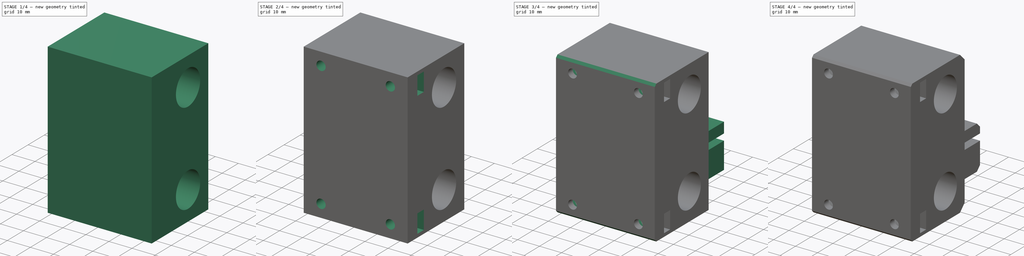
[diagram: build sequence overview — one tinted view per stage of 4, left to right]
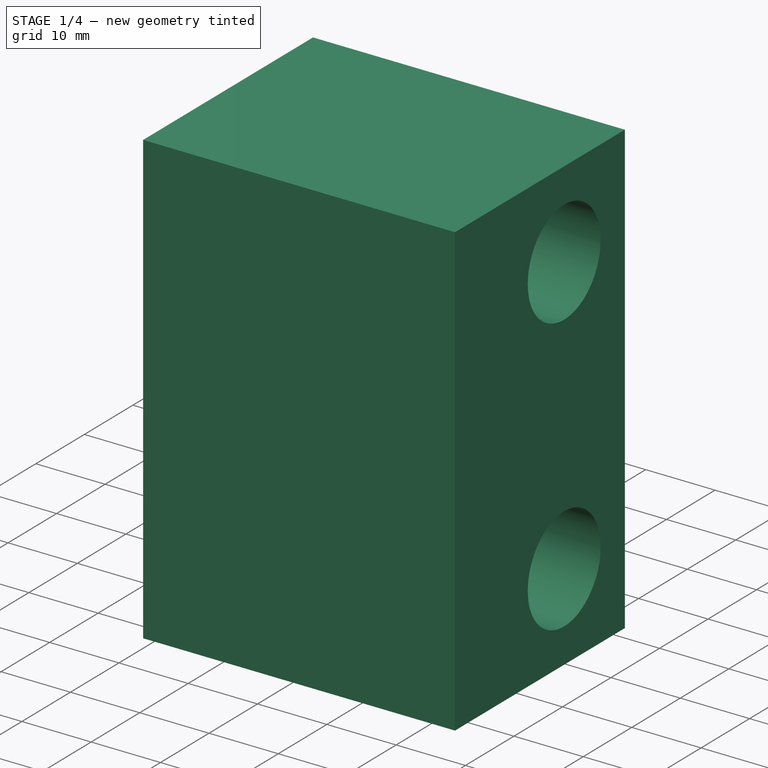
[diagram: stage 1 of 4 — iso view after this stage's code; geometry added in this stage tinted green]
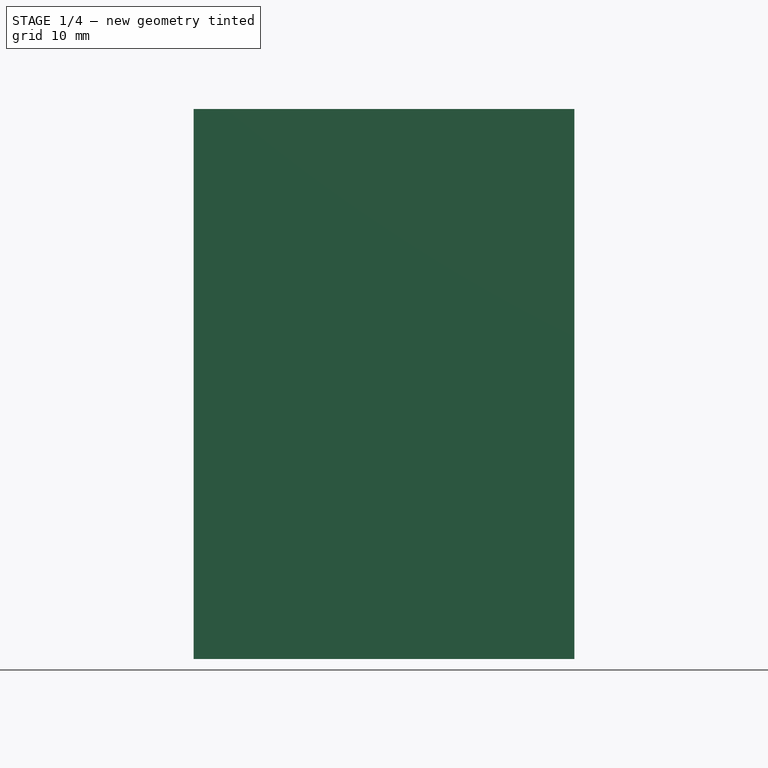
[diagram: stage 1 of 4 — front view after this stage's code; geometry added in this stage tinted green]
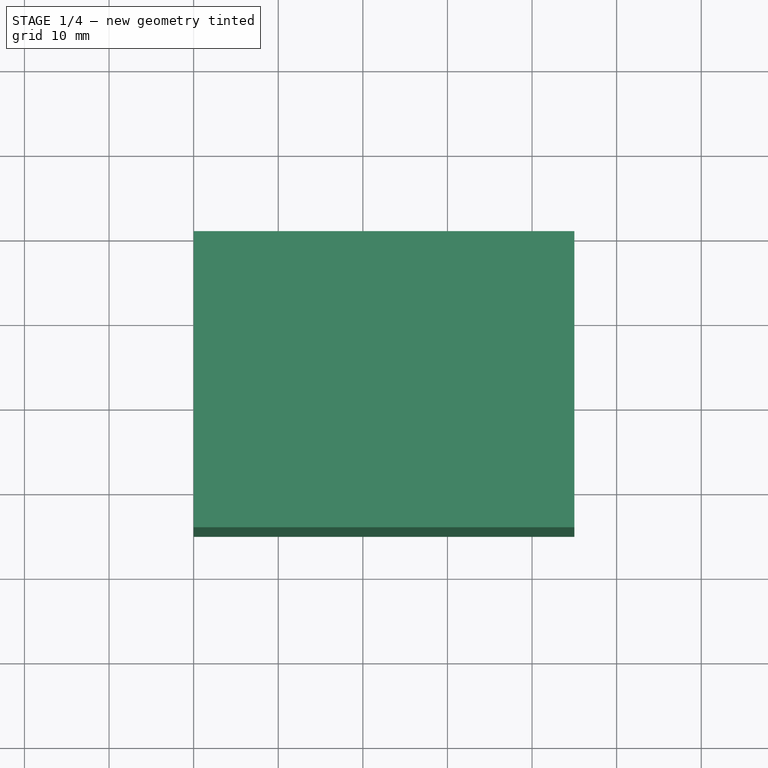
[diagram: stage 1 of 4 — top view after this stage's code; geometry added in this stage tinted green]
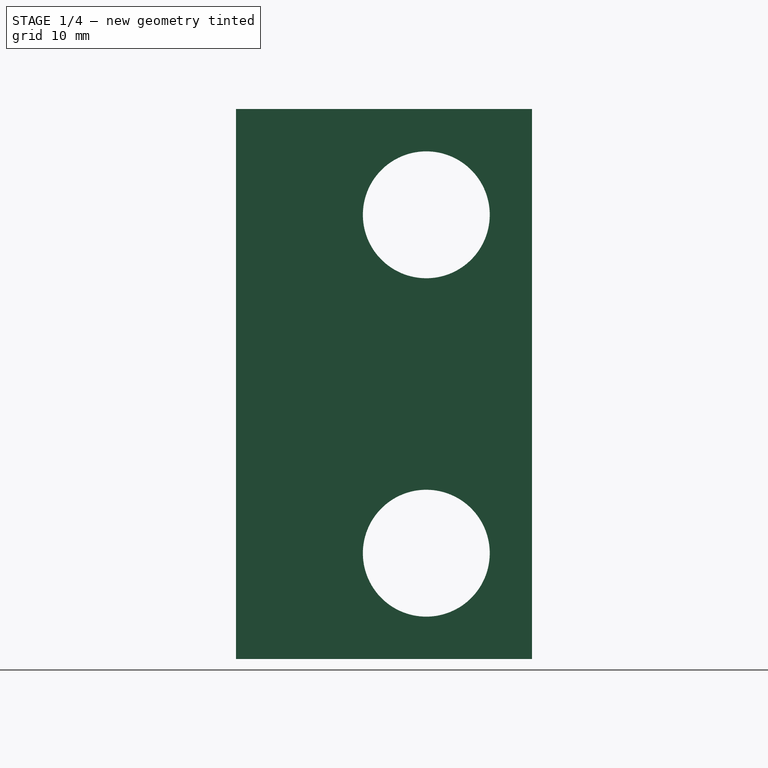
[diagram: stage 1 of 4 — right view after this stage's code; geometry added in this stage tinted green]
FCSTD DOCUMENT  (FreeCAD 0.18R14555 (Git shallow))
Label: carriage
License: All rights reserved
LicenseURL: http://en.wikipedia.org/wiki/All_rights_reserved
objects: Sketcher::SketchObject×6, PartDesign::Pocket×4, PartDesign::Chamfer×3, PartDesign::Pad×2, PartDesign::Body×1
note: 22 computed .brp shape members not serialized (recipe doc carries the construction recipe); baked Part::Feature solids carry a one-line shape summary decoded from their .brp

FEATURE [Sketcher::SketchObject] Sketch
  MapMode = 5
  Placement = pos=(0,0,0) rot=(1,0,0;1.5708rad)
  Support = -> [XZ_Plane]
  sketch-geometry (25):
    g0: LineSegment [constr] StartX=0 StartY=60 StartZ=0 EndX=45 EndY=60 EndZ=0
    g1: LineSegment [constr] StartX=45 StartY=60 StartZ=0 EndX=45 EndY=45 EndZ=0
    g2: LineSegment [constr] StartX=45 StartY=45 StartZ=0 EndX=0 EndY=45 EndZ=0
    g3: LineSegment [constr] StartX=0 StartY=45 StartZ=0 EndX=0 EndY=60 EndZ=0
    g4: LineSegment [constr] StartX=0 StartY=20 StartZ=0 EndX=45 EndY=20 EndZ=0
    g5: LineSegment [constr] StartX=45 StartY=20 StartZ=0 EndX=45 EndY=5 EndZ=0
    g6: LineSegment [constr] StartX=45 StartY=5 StartZ=0 EndX=0 EndY=5 EndZ=0
    g7: LineSegment [constr] StartX=0 StartY=5 StartZ=0 EndX=0 EndY=20 EndZ=0
    g8: LineSegment StartX=0 StartY=65 StartZ=0 EndX=45 EndY=65 EndZ=0
    g9: LineSegment StartX=45 StartY=65 StartZ=0 EndX=45 EndY=0 EndZ=0
    g10: LineSegment StartX=45 StartY=0 StartZ=0 EndX=0 EndY=0 EndZ=0
    g11: LineSegment StartX=0 StartY=0 StartZ=0 EndX=0 EndY=65 EndZ=0
    g12: Circle [constr] CenterX=7.5 CenterY=59.5 CenterZ=0 NormalX=0 NormalY=0 NormalZ=1 AngleXU=0 Radius=2
    g13: Circle [constr] CenterX=37.5 CenterY=59.5 CenterZ=0 NormalX=0 NormalY=0 NormalZ=1 AngleXU=0 Radius=2
    g14: Circle [constr] CenterX=7.5 CenterY=5.5 CenterZ=0 NormalX=0 NormalY=0 NormalZ=1 AngleXU=0 Radius=2
    g15: Circle [constr] CenterX=37.5 CenterY=5.5 CenterZ=0 NormalX=0 NormalY=0 NormalZ=1 AngleXU=0 Radius=2
    g16: LineSegment [constr] StartX=7.5 StartY=59.5 StartZ=0 EndX=37.5 EndY=59.5 EndZ=0
    g17: LineSegment [constr] StartX=37.5 StartY=59.5 StartZ=0 EndX=37.5 EndY=5.5 EndZ=0
    g18: LineSegment [constr] StartX=37.5 StartY=5.5 StartZ=0 EndX=7.5 EndY=5.5 EndZ=0
    g19: LineSegment [constr] StartX=7.5 StartY=5.5 StartZ=0 EndX=7.5 EndY=59.5 EndZ=0
    g20: LineSegment [constr] StartX=7.5 StartY=59.5 StartZ=0 EndX=0 EndY=65 EndZ=0
    g21: LineSegment [constr] StartX=37.5 StartY=59.5 StartZ=0 EndX=45 EndY=65 EndZ=0
    g22: LineSegment [constr] StartX=7.5 StartY=5.5 StartZ=0 EndX=0 EndY=0 EndZ=0
    g23: LineSegment [constr] StartX=0 StartY=5 StartZ=0 EndX=45 EndY=0 EndZ=0
    g24: LineSegment [constr] StartX=0 StartY=65 StartZ=0 EndX=45 EndY=60 EndZ=0
  constraints (65):
    c: Coincident(g0,g1)
    c: Coincident(g1,g2)
    c: Coincident(g2,g3)
    c: Coincident(g3,g0)
    c: Horizontal(g0)
    c: Horizontal(g2)
    c: Vertical(g1)
    c: Vertical(g3)
    c: Coincident(g4,g5)
    c: Coincident(g5,g6)
    c: Coincident(g6,g7)
    c: Coincident(g7,g4)
    c: Horizontal(g4)
    c: Horizontal(g6)
    c: Vertical(g5)
    c: Vertical(g7)
    c: DistanceX(g0,g0) = 45
    c: Equal(g5,g1)
    c: DistanceY(g1,g1) = 15
    c: Coincident(g8,g9)
    c: Coincident(g9,g10)
    c: Coincident(g10,g11)
    c: Coincident(g11,g8)
    c: Horizontal(g8)
    c: Horizontal(g10)
    c: Vertical(g9)
    c: Vertical(g11)
    c: PointOnObject(g0,g11)
    c: PointOnObject(g4,g11)
    c: PointOnObject(g0,g9)
    c: PointOnObject(g4,g9)
    c: DistanceY(g4,g1) = 25
    c: Vertical(g19)
    c: Vertical(g17)
    c: Horizontal(g16)
    c: Horizontal(g18)
    c: Coincident(g17,g15)
    c: Coincident(g15,g18)
    c: Coincident(g18,g14)
    c: Coincident(g19,g14)
    c: Coincident(g16,g19)
    c: Coincident(g16,g13)
    c: Coincident(g13,g17)
    c: Coincident(g12,g16)
    c: Equal(g12,g13)
    c: Equal(g13,g15)
    c: Equal(g15,g14)
    c: Radius(g12) = 2
    c: Equal(g22,g20)
    c: Equal(g20,g21)
    c: Coincident(g22,g14)
    c: Coincident(g10,g22)
    c: Coincident(g20,g8)
    c: Coincident(g20,g12)
    c: Coincident(g21,g8)
    c: Coincident(g21,g13)
    c: Coincident(g24,g8)
    c: Coincident(g24,g0)
    c: Coincident(g23,g9)
    c: Coincident(g6,g23)
    c: Equal(g23,g24)
    c: DistanceX(g16,g16) = 30
    c: DistanceY(g19,g19) = 54
    c: DistanceY(g0,g8) = 5
    c: Coincident(g10,g-1)
FEATURE [PartDesign::Pad] Pad  label="Base"
  Length = 35
  Length2 = 100
  Placement = pos=(0,0,0) rot=(1,0,0;1.5708rad)
  Profile = -> Sketch
  Type = 0
FEATURE [Sketcher::SketchObject] Sketch001
  ExternalGeometry = -> [Pad]
  MapMode = 5
  Placement = pos=(45,0,0) rot=(0.707107,0,0.707107;3.14159rad)
  Support = -> [Pad]
  sketch-geometry (5):
    g0: Circle CenterX=52.5 CenterY=12.5 CenterZ=0 NormalX=0 NormalY=0 NormalZ=1 AngleXU=0 Radius=7.5
    g1: Circle CenterX=12.5 CenterY=12.5 CenterZ=0 NormalX=0 NormalY=0 NormalZ=1 AngleXU=0 Radius=7.5
    g2: LineSegment [constr] StartX=12.5 StartY=12.5 StartZ=0 EndX=0 EndY=35 EndZ=0
    g3: LineSegment [constr] StartX=12.5 StartY=12.5 StartZ=0 EndX=52.5 EndY=12.5 EndZ=0
    g4: LineSegment [constr] StartX=52.5 StartY=12.5 StartZ=0 EndX=65 EndY=35 EndZ=0
  constraints (12):
    c: Coincident(g2,g1)
    c: Coincident(g2,g-4)
    c: Coincident(g3,g1)
    c: Coincident(g3,g0)
    c: Horizontal(g3)
    c: Coincident(g4,g0)
    c: Coincident(g4,g-4)
    c: Equal(g4,g2)
    c: DistanceX(g3,g3) = 40
    c: Equal(g1,g0)
    c: Radius(g0) = 7.5
    c: DistanceY(g-3,g0) = 12.5
FEATURE [PartDesign::Pocket] Pocket  label="Bearing holes"
  BaseFeature = -> Pad
  Length = 0
  Length2 = 100
  Placement = pos=(0,0,0) rot=(1,0,0;1.5708rad)
  Profile = -> Sketch001
  Type = 1
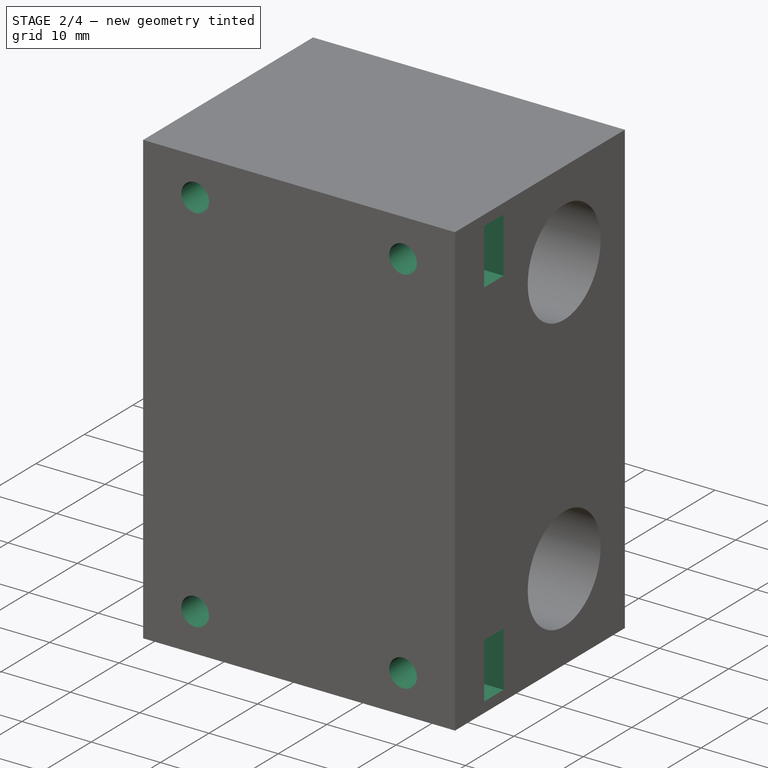
[diagram: stage 2 of 4 — iso view after this stage's code; geometry added in this stage tinted green]
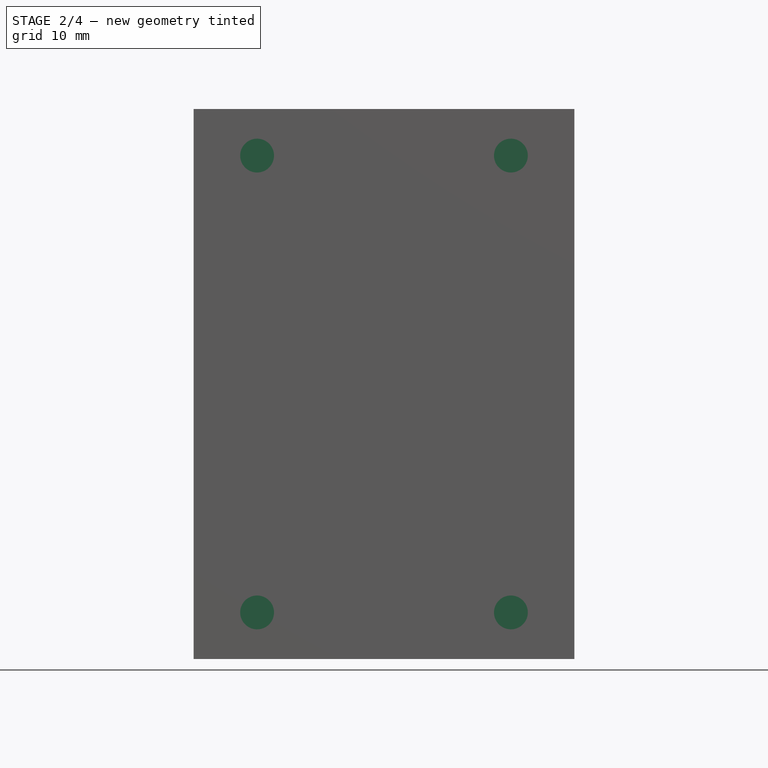
[diagram: stage 2 of 4 — front view after this stage's code; geometry added in this stage tinted green]
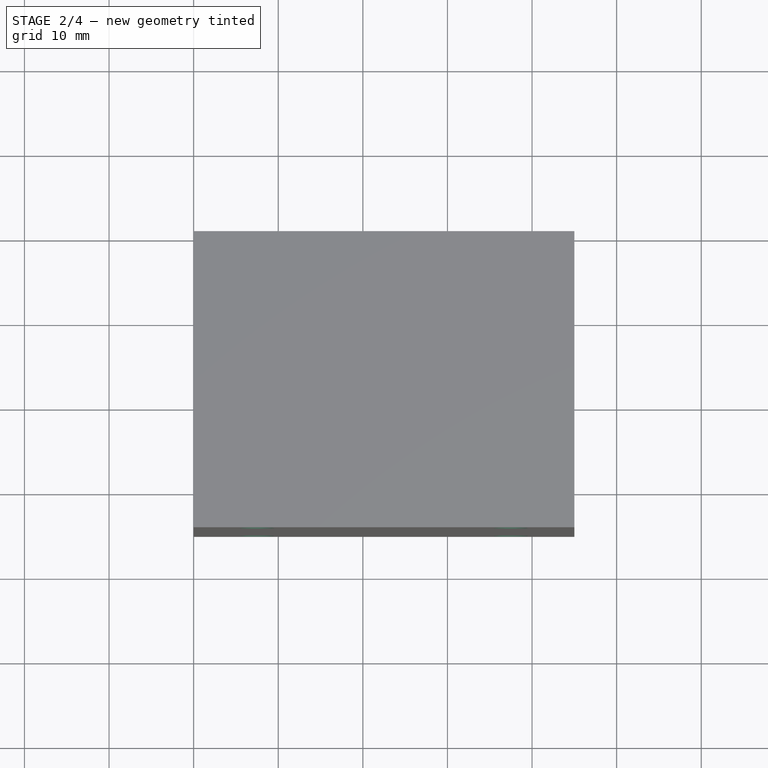
[diagram: stage 2 of 4 — top view after this stage's code; geometry added in this stage tinted green]
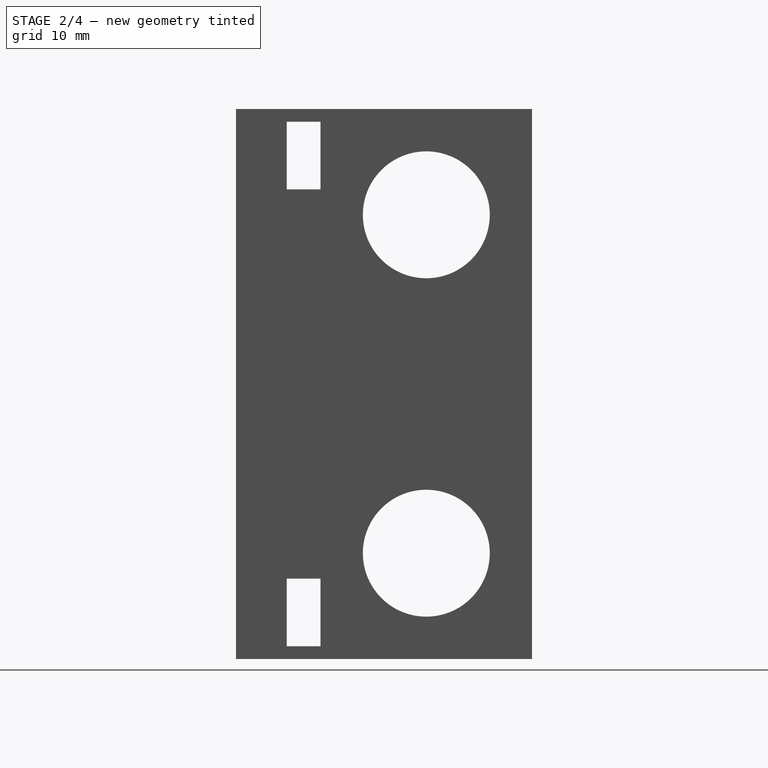
[diagram: stage 2 of 4 — right view after this stage's code; geometry added in this stage tinted green]
FEATURE [Sketcher::SketchObject] Sketch002
  ExternalGeometry = -> [Pad]
  MapMode = 5
  Placement = pos=(0,-35,-7.7e-15) rot=(1,0,0;1.5708rad)
  Support = -> [Pad]
  sketch-geometry (11):
    g0: Circle CenterX=7.5 CenterY=59.5 CenterZ=0 NormalX=0 NormalY=0 NormalZ=1 AngleXU=0 Radius=2
    g1: Circle CenterX=37.5 CenterY=59.5 CenterZ=0 NormalX=0 NormalY=0 NormalZ=1 AngleXU=0 Radius=2
    g2: Circle CenterX=7.5 CenterY=5.5 CenterZ=0 NormalX=0 NormalY=0 NormalZ=1 AngleXU=0 Radius=2
    g3: Circle CenterX=37.5 CenterY=5.5 CenterZ=0 NormalX=0 NormalY=0 NormalZ=1 AngleXU=0 Radius=2
    g4: LineSegment [constr] StartX=7.5 StartY=59.5 StartZ=0 EndX=37.5 EndY=59.5 EndZ=0
    g5: LineSegment [constr] StartX=7.5 StartY=59.5 StartZ=0 EndX=7.5 EndY=5.5 EndZ=0
    g6: LineSegment [constr] StartX=7.5 StartY=5.5 StartZ=0 EndX=37.5 EndY=5.5 EndZ=0
    g7: LineSegment [constr] StartX=37.5 StartY=5.5 StartZ=0 EndX=37.5 EndY=59.5 EndZ=0
    g8: LineSegment [constr] StartX=7.5 StartY=59.5 StartZ=0 EndX=0 EndY=65 EndZ=0
    g9: LineSegment [constr] StartX=37.5 StartY=59.5 StartZ=0 EndX=45 EndY=65 EndZ=0
    g10: LineSegment [constr] StartX=7.5 StartY=5.5 StartZ=0 EndX=0 EndY=0 EndZ=0
  constraints (26):
    c: Coincident(g4,g0)
    c: Coincident(g4,g1)
    c: Horizontal(g4)
    c: Coincident(g5,g0)
    c: Coincident(g5,g2)
    c: Vertical(g5)
    c: Coincident(g6,g2)
    c: Coincident(g6,g3)
    c: Horizontal(g6)
    c: Coincident(g7,g3)
    c: Coincident(g7,g1)
    c: Vertical(g7)
    c: Equal(g0,g1)
    c: Equal(g1,g2)
    c: Equal(g2,g3)
    c: Coincident(g8,g0)
    c: Coincident(g8,g-3)
    c: Coincident(g9,g1)
    c: Coincident(g9,g-4)
    c: Coincident(g10,g2)
    c: Coincident(g10,g-1)
    c: Equal(g10,g8)
    c: Equal(g8,g9)
    c: DistanceX(g4,g4) = 30
    c: DistanceY(g5,g5) = 54
    c: Radius(g0) = 2
FEATURE [PartDesign::Pocket] Pocket001  label="Extruder holes"
  BaseFeature = -> Pocket
  Length = 6
  Length2 = 100
  Placement = pos=(0,0,0) rot=(1,0,0;1.5708rad)
  Profile = -> Sketch002
  Type = 0
FEATURE [Sketcher::SketchObject] Sketch003
  ExternalGeometry = -> [Pocket001]
  MapMode = 5
  Placement = pos=(45,0,0) rot=(0.707107,0,0.707107;3.14159rad)
  Support = -> [Pocket001]
  sketch-geometry (13):
    g0: LineSegment StartX=9.5 StartY=25 StartZ=0 EndX=1.5 EndY=25 EndZ=0
    g1: LineSegment StartX=1.5 StartY=25 StartZ=0 EndX=1.5 EndY=29 EndZ=0
    g2: LineSegment StartX=1.5 StartY=29 StartZ=0 EndX=9.5 EndY=29 EndZ=0
    g3: LineSegment StartX=9.5 StartY=29 StartZ=0 EndX=9.5 EndY=25 EndZ=0
    g4: LineSegment StartX=55.5 StartY=25 StartZ=0 EndX=63.5 EndY=25 EndZ=0
    g5: LineSegment StartX=63.5 StartY=25 StartZ=0 EndX=63.5 EndY=29 EndZ=0
    g6: LineSegment StartX=63.5 StartY=29 StartZ=0 EndX=55.5 EndY=29 EndZ=0
    g7: LineSegment StartX=55.5 StartY=29 StartZ=0 EndX=55.5 EndY=25 EndZ=0
    g8: LineSegment [constr] StartX=1.5 StartY=25 StartZ=0 EndX=5.5 EndY=29 EndZ=0
    g9: LineSegment [constr] StartX=5.5 StartY=29 StartZ=0 EndX=9.5 EndY=25 EndZ=0
    g10: LineSegment [constr] StartX=55.5 StartY=25 StartZ=0 EndX=59.5 EndY=29 EndZ=0
    g11: LineSegment [constr] StartX=63.5 StartY=25 StartZ=0 EndX=59.5 EndY=29 EndZ=0
    g12: LineSegment [constr] StartX=9.5 StartY=25 StartZ=0 EndX=55.5 EndY=25 EndZ=0
  constraints (34):
    c: Coincident(g0,g1)
    c: Coincident(g1,g2)
    c: Coincident(g2,g3)
    c: Coincident(g3,g0)
    c: Horizontal(g0)
    c: Horizontal(g2)
    c: Vertical(g1)
    c: Vertical(g3)
    c: Coincident(g4,g5)
    c: Coincident(g5,g6)
    c: Coincident(g6,g7)
    c: Coincident(g7,g4)
    c: Horizontal(g4)
    c: Horizontal(g6)
    c: Vertical(g5)
    c: Vertical(g7)
    c: Coincident(g8,g0)
    c: PointOnObject(g8,g2)
    c: Coincident(g9,g8)
    c: Coincident(g9,g0)
    c: Coincident(g8,g-3)
    c: Coincident(g10,g4)
    c: PointOnObject(g10,g6)
    c: Coincident(g11,g4)
    c: Coincident(g11,g10)
    c: Coincident(g10,g-4)
    c: Coincident(g12,g0)
    c: Coincident(g12,g4)
    c: Horizontal(g12)
    c: Equal(g10,g11)
    c: Equal(g8,g9)
    c: Equal(g9,g10)
    c: DistanceY(g3,g3) = 4
    c: DistanceX(g0,g0) = 8
FEATURE [PartDesign::Pocket] Pocket002  label="Nut gap"
  BaseFeature = -> Pocket001
  Length = 5
  Length2 = 100
  Placement = pos=(0,0,0) rot=(1,0,0;1.5708rad)
  Profile = -> Sketch003
  Type = 1
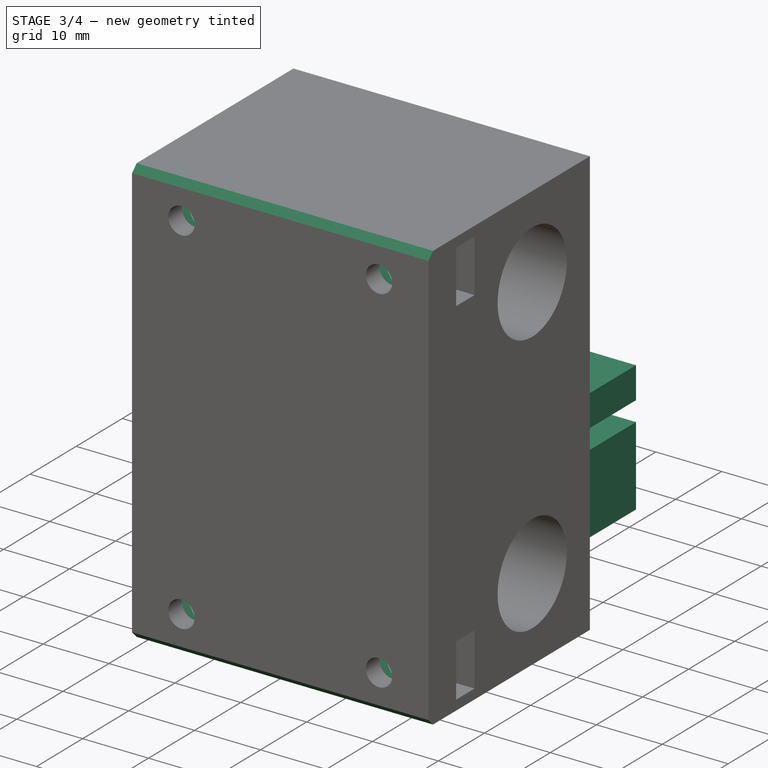
[diagram: stage 3 of 4 — iso view after this stage's code; geometry added in this stage tinted green]
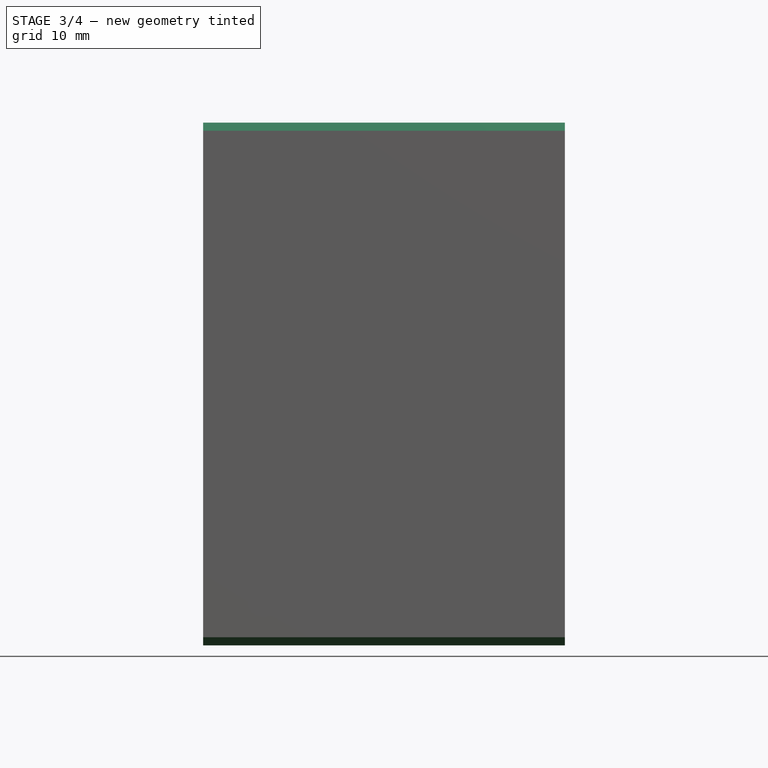
[diagram: stage 3 of 4 — front view after this stage's code; geometry added in this stage tinted green]
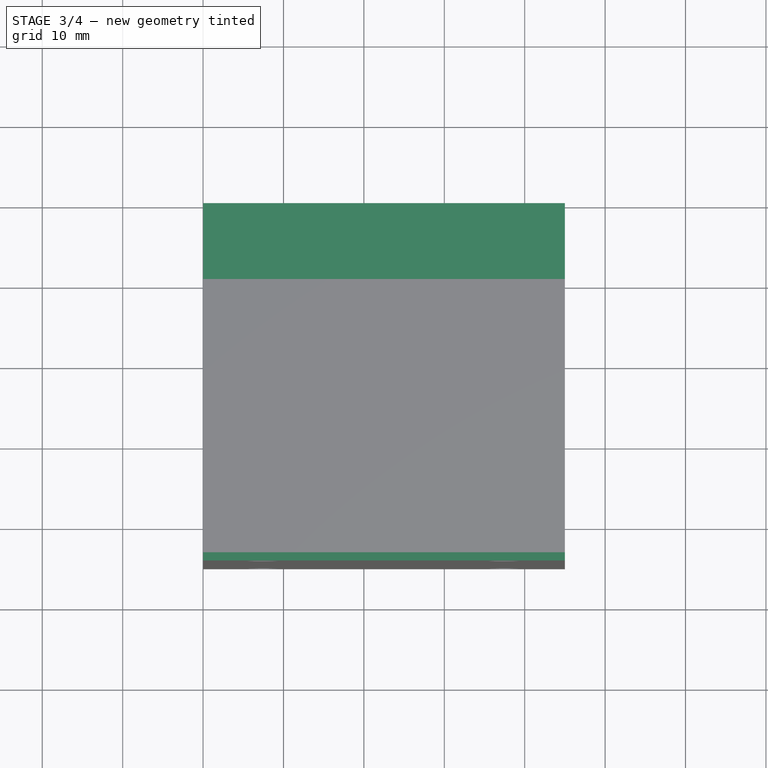
[diagram: stage 3 of 4 — top view after this stage's code; geometry added in this stage tinted green]
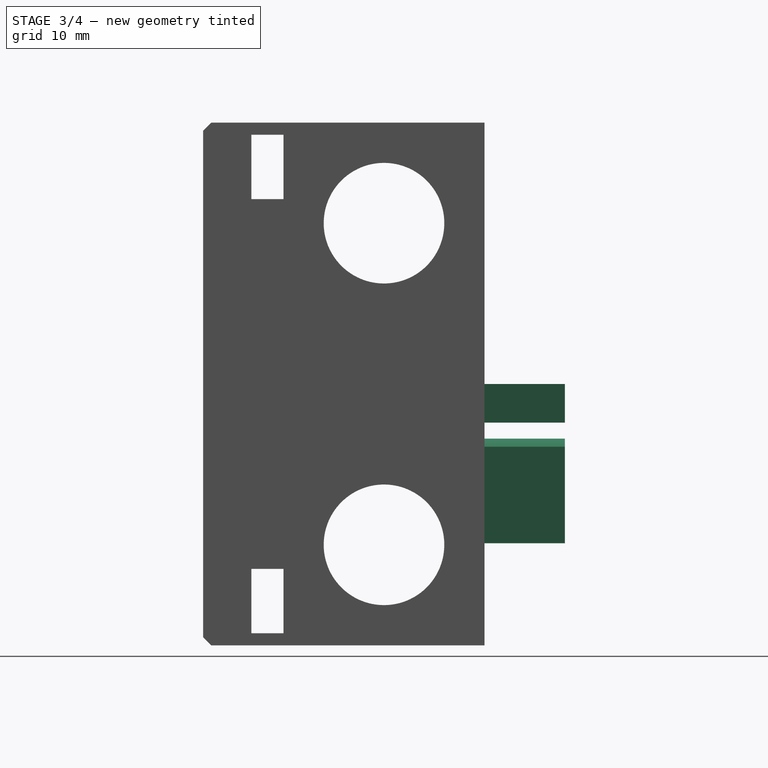
[diagram: stage 3 of 4 — right view after this stage's code; geometry added in this stage tinted green]
FEATURE [Sketcher::SketchObject] Sketch004
  ExternalGeometry = -> [Pocket002]
  MapMode = 5
  Placement = pos=(0,-29,0) rot=(-1,0,0;1.5708rad)
  Support = -> [Pocket002]
  sketch-geometry (28):
    g0: LineSegment StartX=11.5415 StartY=-5.5 StartZ=0 EndX=9.52073 EndY=-2 EndZ=0
    g1: LineSegment StartX=9.52073 StartY=-2 StartZ=0 EndX=5.47927 EndY=-2 EndZ=0
    g2: LineSegment StartX=5.47927 StartY=-2 StartZ=0 EndX=3.45855 EndY=-5.5 EndZ=0
    g3: LineSegment StartX=3.45855 StartY=-5.5 StartZ=0 EndX=5.47927 EndY=-9 EndZ=0
    g4: LineSegment StartX=5.47927 StartY=-9 StartZ=0 EndX=9.52073 EndY=-9 EndZ=0
    g5: LineSegment StartX=9.52073 StartY=-9 StartZ=0 EndX=11.5415 EndY=-5.5 EndZ=0
    g6: Circle [constr] CenterX=7.5 CenterY=-5.5 CenterZ=0 NormalX=0 NormalY=0 NormalZ=1 AngleXU=0 Radius=4.04145
    g7: LineSegment StartX=39.5207 StartY=-9 StartZ=0 EndX=41.5415 EndY=-5.5 EndZ=0
    g8: LineSegment StartX=41.5415 StartY=-5.5 StartZ=0 EndX=39.5207 EndY=-2 EndZ=0
    g9: LineSegment StartX=39.5207 StartY=-2 StartZ=0 EndX=35.4793 EndY=-2 EndZ=0
    g10: LineSegment StartX=35.4793 StartY=-2 StartZ=0 EndX=33.4585 EndY=-5.5 EndZ=0
    g11: LineSegment StartX=33.4585 StartY=-5.5 StartZ=0 EndX=35.4793 EndY=-9 EndZ=0
    g12: LineSegment StartX=35.4793 StartY=-9 StartZ=0 EndX=39.5207 EndY=-9 EndZ=0
    g13: Circle [constr] CenterX=37.5 CenterY=-5.5 CenterZ=0 NormalX=0 NormalY=0 NormalZ=1 AngleXU=0 Radius=4.04145
    g14: LineSegment StartX=9.52073 StartY=-63 StartZ=0 EndX=11.5415 EndY=-59.5 EndZ=0
    g15: LineSegment StartX=11.5415 StartY=-59.5 StartZ=0 EndX=9.52073 EndY=-56 EndZ=0
    g16: LineSegment StartX=9.52073 StartY=-56 StartZ=0 EndX=5.47927 EndY=-56 EndZ=0
    g17: LineSegment StartX=5.47927 StartY=-56 StartZ=0 EndX=3.45855 EndY=-59.5 EndZ=0
    g18: LineSegment StartX=3.45855 StartY=-59.5 StartZ=0 EndX=5.47927 EndY=-63 EndZ=0
    g19: LineSegment StartX=5.47927 StartY=-63 StartZ=0 EndX=9.52073 EndY=-63 EndZ=0
    g20: Circle [constr] CenterX=7.5 CenterY=-59.5 CenterZ=0 NormalX=0 NormalY=0 NormalZ=1 AngleXU=0 Radius=4.04145
    g21: LineSegment StartX=39.5207 StartY=-63 StartZ=0 EndX=41.5415 EndY=-59.5 EndZ=0
    g22: LineSegment StartX=41.5415 StartY=-59.5 StartZ=0 EndX=39.5207 EndY=-56 EndZ=0
    g23: LineSegment StartX=39.5207 StartY=-56 StartZ=0 EndX=35.4793 EndY=-56 EndZ=0
    g24: LineSegment StartX=35.4793 StartY=-56 StartZ=0 EndX=33.4585 EndY=-59.5 EndZ=0
    g25: LineSegment StartX=33.4585 StartY=-59.5 StartZ=0 EndX=35.4793 EndY=-63 EndZ=0
    g26: LineSegment StartX=35.4793 StartY=-63 StartZ=0 EndX=39.5207 EndY=-63 EndZ=0
    g27: Circle [constr] CenterX=37.5 CenterY=-59.5 CenterZ=0 NormalX=0 NormalY=0 NormalZ=1 AngleXU=0 Radius=4.04145
  constraints (64):
    c: Coincident(g0,g1)
    c: Coincident(g1,g2)
    c: Coincident(g2,g3)
    c: Coincident(g3,g4)
    c: Coincident(g4,g5)
    c: Coincident(g5,g0)
    c: Equal(g0, g1-g5) x5
    c: PointOnObject(g0,g6)
    c: PointOnObject(g1,g6)
    c: PointOnObject(g2,g6)
    c: PointOnObject(g3,g6)
    c: PointOnObject(g4,g6)
    c: PointOnObject(g5,g6)
    c: Coincident(g6,g-3)
    c: Coincident(g7,g8)
    c: Coincident(g8,g9)
    c: Coincident(g9,g10)
    c: Coincident(g10,g11)
    c: Coincident(g11,g12)
    c: Coincident(g12,g7)
    c: Equal(g7, g8-g12) x5
    c: PointOnObject(g7,g13)
    c: PointOnObject(g8,g13)
    c: PointOnObject(g9,g13)
    c: PointOnObject(g10,g13)
    c: PointOnObject(g11,g13)
    c: PointOnObject(g12,g13)
    c: Coincident(g13,g-5)
    c: Coincident(g14,g15)
    c: Coincident(g15,g16)
    c: Coincident(g16,g17)
    c: Coincident(g17,g18)
    c: Coincident(g18,g19)
    c: Coincident(g19,g14)
    c: Equal(g14, g15-g19) x5
    c: PointOnObject(g14,g20)
    c: PointOnObject(g15,g20)
    c: PointOnObject(g16,g20)
    c: PointOnObject(g17,g20)
    c: PointOnObject(g18,g20)
    c: PointOnObject(g19,g20)
    c: Coincident(g20,g-4)
    c: Coincident(g21,g22)
    c: Coincident(g22,g23)
    c: Coincident(g23,g24)
    c: Coincident(g24,g25)
    c: Coincident(g25,g26)
    c: Coincident(g26,g21)
    c: Equal(g21, g22-g26) x5
    c: PointOnObject(g21,g27)
    c: PointOnObject(g22,g27)
    c: PointOnObject(g23,g27)
    c: PointOnObject(g24,g27)
    c: PointOnObject(g25,g27)
    c: PointOnObject(g26,g27)
    c: Equal(g27,g20)
    c: Equal(g20,g13)
    c: Equal(g13,g6)
    c: Horizontal(g1)
    c: Horizontal(g9)
    c: Horizontal(g16)
    c: Horizontal(g23)
    c: DistanceY(g3,g1) = 7
    c: Coincident(g27,g-6)
FEATURE [PartDesign::Pocket] Pocket003  label="Extruder hex pocket"
  BaseFeature = -> Pocket002
  Length = 3
  Length2 = 100
  Placement = pos=(0,0,0) rot=(1,0,0;1.5708rad)
  Profile = -> Sketch004
  Type = 0
FEATURE [Sketcher::SketchObject] Sketch005
  ExternalGeometry = -> [Pocket003]
  MapMode = 5
  Placement = pos=(0,-1e-16,0) rot=(-1,0,0;1.5708rad)
  Support = -> [Pocket003]
  sketch-geometry (21):
    g0: LineSegment StartX=45 StartY=-24.7 StartZ=0 EndX=45 EndY=-12.7 EndZ=0
    g1: LineSegment StartX=45 StartY=-12.7 StartZ=0 EndX=0 EndY=-12.7 EndZ=0
    g2: LineSegment StartX=0 StartY=-12.7 StartZ=0 EndX=0 EndY=-24.7 EndZ=0
    g3: LineSegment StartX=0 StartY=-24.7 StartZ=0 EndX=7.5 EndY=-24.7 EndZ=0
    g4: LineSegment StartX=7.5 StartY=-24.7 StartZ=0 EndX=14.5 EndY=-17.7 EndZ=0
    g5: LineSegment StartX=14.5 StartY=-17.7 StartZ=0 EndX=30.5 EndY=-17.7 EndZ=0
    g6: LineSegment StartX=30.5 StartY=-17.7 StartZ=0 EndX=37.5 EndY=-24.7 EndZ=0
    g7: LineSegment StartX=37.5 StartY=-24.7 StartZ=0 EndX=45 EndY=-24.7 EndZ=0
    g8: Circle CenterX=27.5 CenterY=-22.7 CenterZ=0 NormalX=0 NormalY=0 NormalZ=1 AngleXU=0 Radius=3
    g9: Circle CenterX=17.5 CenterY=-22.7 CenterZ=0 NormalX=0 NormalY=0 NormalZ=1 AngleXU=0 Radius=3
    g10: LineSegment StartX=45 StartY=-32.5 StartZ=0 EndX=0 EndY=-32.5 EndZ=0
    g11: LineSegment StartX=0 StartY=-32.5 StartZ=0 EndX=0 EndY=-27.7 EndZ=0
    g12: LineSegment StartX=0 StartY=-27.7 StartZ=0 EndX=45 EndY=-27.7 EndZ=0
    g13: LineSegment StartX=45 StartY=-27.7 StartZ=0 EndX=45 EndY=-32.5 EndZ=0
    g14: LineSegment [constr] StartX=37.5 StartY=-24.7 StartZ=0 EndX=7.5 EndY=-24.7 EndZ=0
    g15: LineSegment [constr] StartX=45 StartY=-65 StartZ=0 EndX=0 EndY=-32.5 EndZ=0
    g16: LineSegment [constr] StartX=0 StartY=-32.5 StartZ=0 EndX=45 EndY=0 EndZ=0
    g17: LineSegment [constr] StartX=0 StartY=-27.7 StartZ=0 EndX=45 EndY=-27.7 EndZ=0
    g18: LineSegment [constr] StartX=17.5 StartY=-22.7 StartZ=0 EndX=27.5 EndY=-22.7 EndZ=0
    g19: LineSegment [constr] StartX=17.5 StartY=-22.7 StartZ=0 EndX=14.5 EndY=-17.7 EndZ=0
    g20: LineSegment [constr] StartX=27.5 StartY=-22.7 StartZ=0 EndX=30.5 EndY=-17.7 EndZ=0
  constraints (57):
    c: Vertical(g0)
    c: Vertical(g2)
    c: Coincident(g2,g3)
    c: Coincident(g3,g4)
    c: Coincident(g4,g5)
    c: Horizontal(g5)
    c: Coincident(g5,g6)
    c: Coincident(g6,g7)
    c: Coincident(g7,g0)
    c: Horizontal(g7)
    c: Horizontal(g3)
    c: Coincident(g10,g11)
    c: Coincident(g11,g12)
    c: Coincident(g12,g13)
    c: Coincident(g13,g10)
    c: Horizontal(g10)
    c: Horizontal(g12)
    c: Vertical(g11)
    c: Vertical(g13)
    c: Coincident(g14,g6)
    c: Coincident(g14,g3)
    c: Horizontal(g14)
    c: Equal(g6,g4)
    c: Coincident(g15,g10)
    c: Coincident(g16,g10)
    c: Equal(g16,g15)
    c: PointOnObject(g10,g-2)
    c: PointOnObject(g10,g-3)
    c: PointOnObject(g17,g-3)
    c: Horizontal(g17)
    c: Coincident(g11,g17)
    c: DistanceY(g10,g11) = 4.8
    c: DistanceY(g11,g2) = 3
    c: Equal(g3,g7)
    c: Coincident(g15,g-3)
    c: Coincident(g18,g9)
    c: Coincident(g18,g8)
    c: Horizontal(g18)
    c: Coincident(g19,g9)
    c: Coincident(g19,g4)
    c: Coincident(g20,g8)
    c: Coincident(g20,g5)
    c: Equal(g20,g19)
    c: DistanceY(g11,g9) = 5
    c: Equal(g9,g8)
    c: Radius(g9) = 3
    c: DistanceX(g9,g8) = 10
    c: Angle(g14,g4) = 0.785398
    c: DistanceX(g3,g3) = 7.5
    c: DistanceY(g3,g4) = 7
    c: Coincident(g16,g-3)
    c: Coincident(g2,g1)
    c: Coincident(g1,g0)
    c: Horizontal(g1)
    c: PointOnObject(g0,g-3)
    c: PointOnObject(g1,g-2)
    c: DistanceY(g4,g1) = 5
FEATURE [PartDesign::Pad] Pad001
  BaseFeature = -> Pocket003
  Length = 10
  Length2 = 100
  Placement = pos=(0,0,0) rot=(1,0,0;1.5708rad)
  Profile = -> Sketch005
  Type = 0
FEATURE [PartDesign::Chamfer] Chamfer
  Base = -> Pad001 [Edge4,Edge40]
  BaseFeature = -> Pad001
  Placement = pos=(0,0,0) rot=(1,0,0;1.5708rad)
  Size = 1
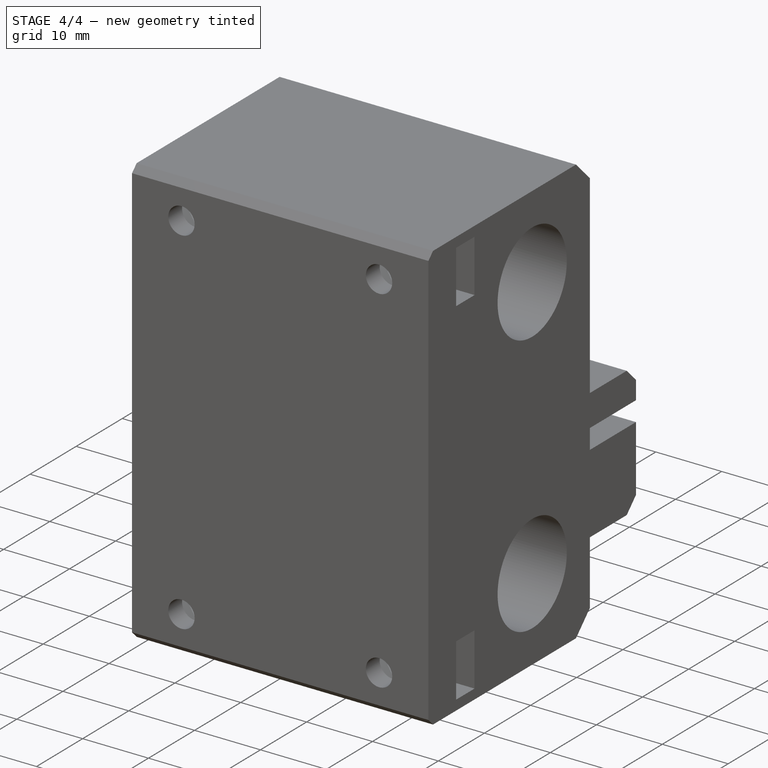
[diagram: stage 4 of 4 — iso view after this stage's code; geometry added in this stage tinted green]
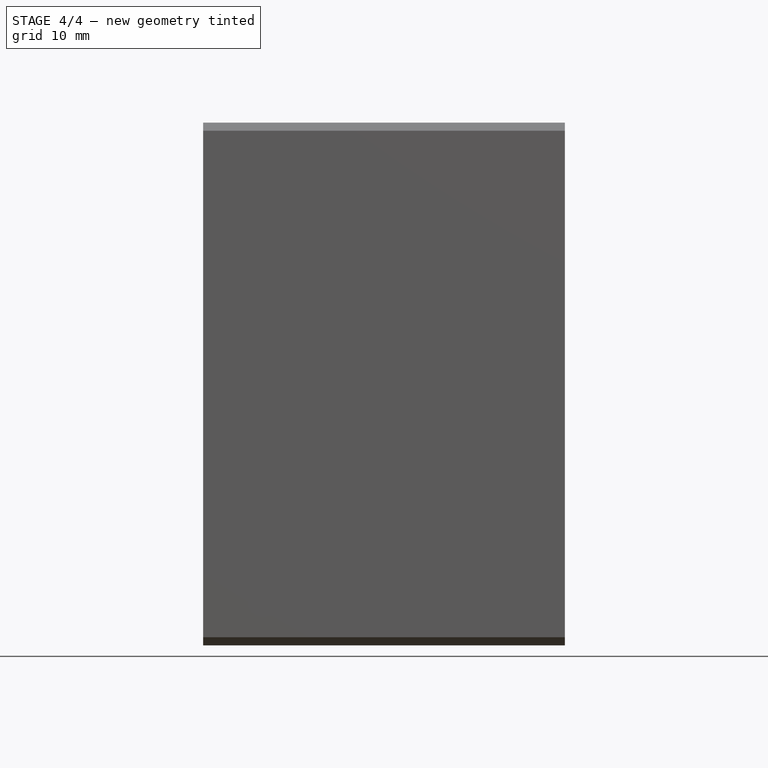
[diagram: stage 4 of 4 — front view after this stage's code; geometry added in this stage tinted green]
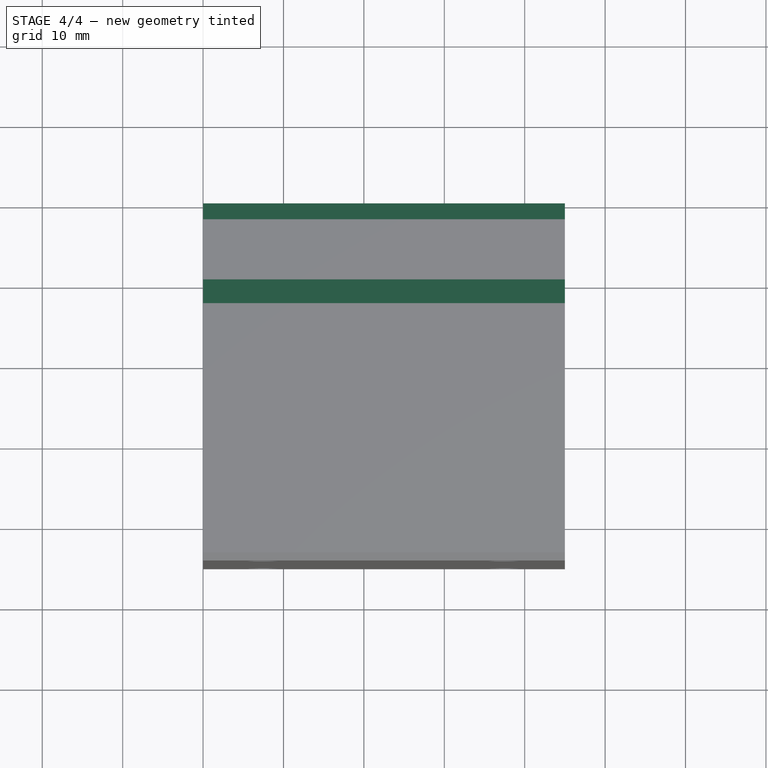
[diagram: stage 4 of 4 — top view after this stage's code; geometry added in this stage tinted green]
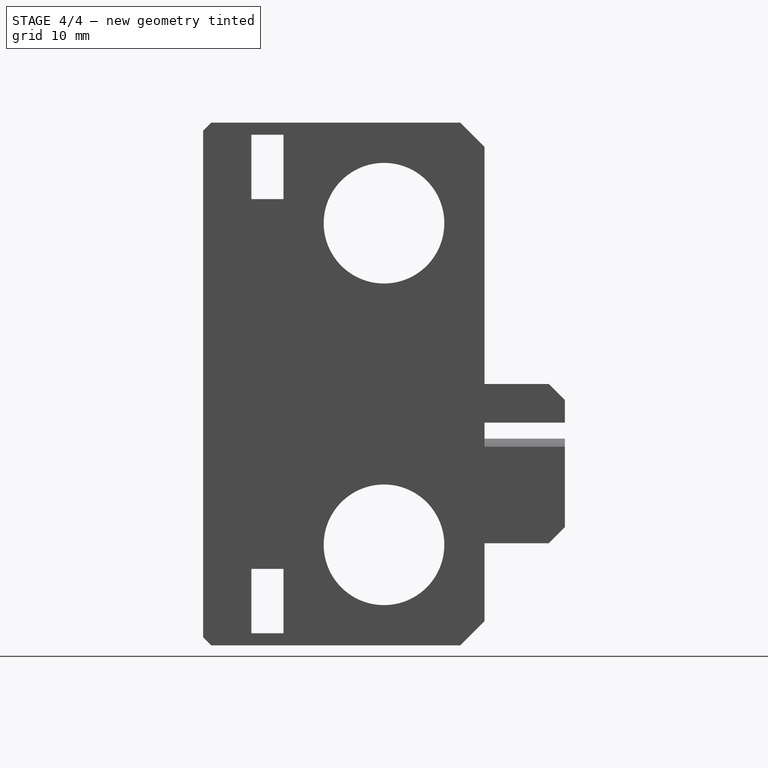
[diagram: stage 4 of 4 — right view after this stage's code; geometry added in this stage tinted green]
FEATURE [PartDesign::Chamfer] Chamfer001
  Base = -> Chamfer [Edge3,Edge46]
  BaseFeature = -> Chamfer
  Placement = pos=(0,0,0) rot=(1,0,0;1.5708rad)
  Size = 3
FEATURE [PartDesign::Chamfer] Chamfer002
  Base = -> Chamfer001 [Edge136,Edge113]
  BaseFeature = -> Chamfer001
  Placement = pos=(0,0,0) rot=(1,0,0;1.5708rad)
  Size = 2
FEATURE [PartDesign::Body] Body  label="carriage"
  Group = -> [Sketch,Pad,Sketch001,Pocket,Sketch002,Pocket001,Sketch003,Pocket002,Sketch004,Pocket003,Sketch005,Pad001,Chamfer,Chamfer001,Chamfer002]
  Origin = -> Origin
  Tip = -> Chamfer002
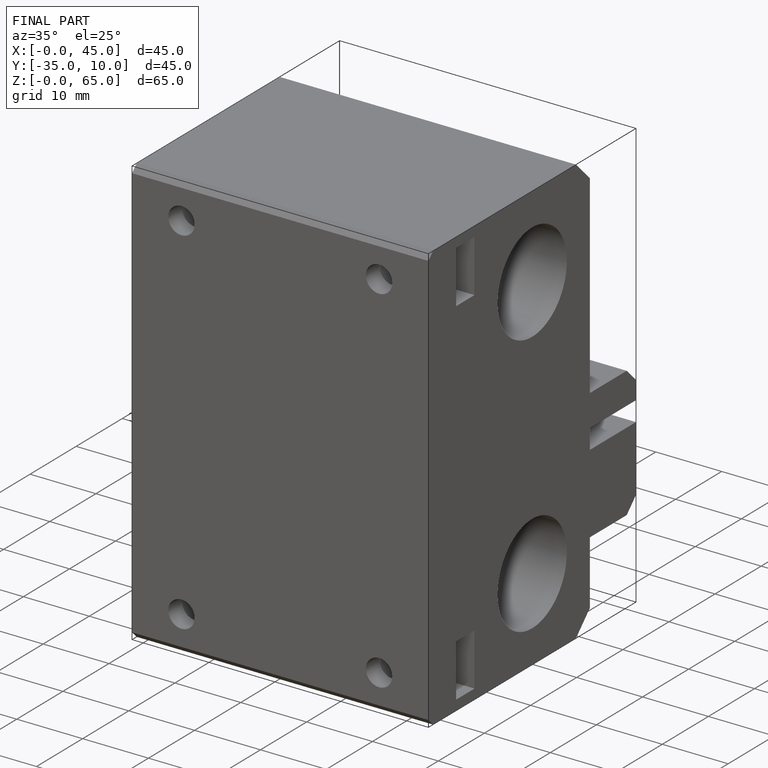
[diagram: finished part — iso view with bounding-box wireframe]
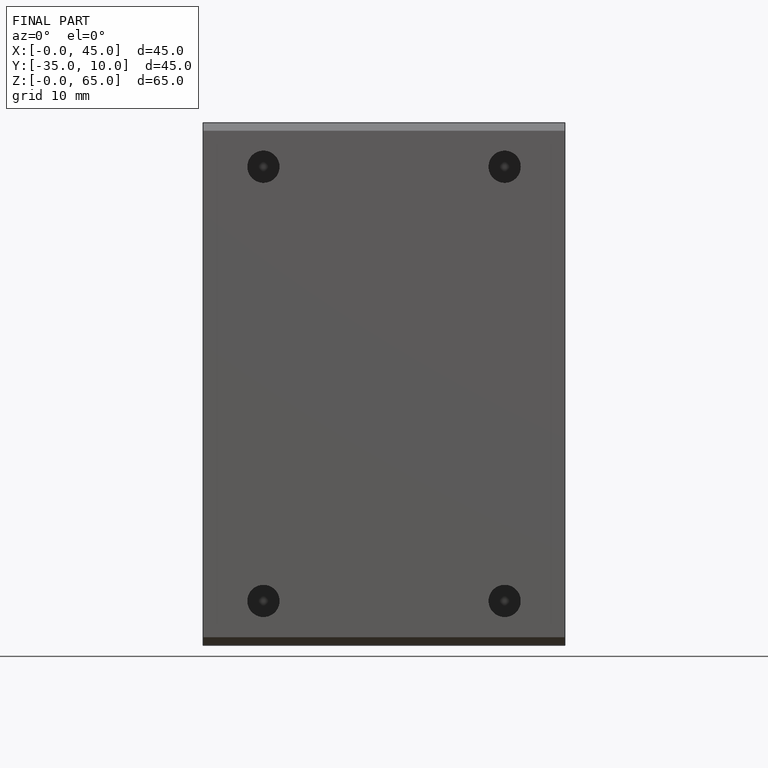
[diagram: finished part — front view with bounding-box wireframe]
